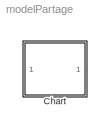
MODEL modelPartage
KIND model
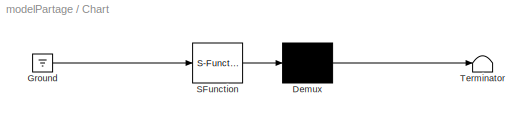
BLOCK [SubSystem] Chart
  FunctionWithSeparateData = off
  MaskDescription = Stateflow diagram
  MaskDisplay = plot(sf('Private','sfblk','xIcon'),sf('Private','sfblk','yIcon'));text(0.5,0,sf('Private', 'sfblk', 'tIcon'),'HorizontalAl','Center','VerticalAl','Bottom');
  MaskHideContents = off
  MaskIconFrame = off
  MaskIconOpaque = on
  MaskIconRotate = none
  MaskIconUnits = autoscale
  MaskPortRotate = default
  MaskSelfModifiable = on
  MaskType = Stateflow
  MinAlgLoopOccurrences = off
  Opaque = off
  PermitHierarchicalResolution = ExplicitOnly
  Ports = []
  PropExecContextOutsideSubsystem = off
  RTWSystemCode = Auto
  RequestExecContextInheritance = off
  SID = 3
  TreatAsAtomicUnit = on
BLOCK [Demux] Chart/ Demux 
  Outputs = 1
  Ports = [1, 1]
  SID = 14
BLOCK [Ground] Chart/ Ground 
  SID = 15
BLOCK [S-Function] Chart/ SFunction 
  EnableBusSupport = off
  FunctionName = sf_sfun
  PortCounts = [1 1]
  Ports = [1, 1]
  SID = 13
  Tag = Stateflow S-Function modelPartage 1
BLOCK [Terminator] Chart/ Terminator 
  SID = 16
LINE Chart/ Demux :1 -> Chart/ Terminator :1
LINE Chart/ Ground :1 -> Chart/ SFunction :1
LINE Chart/ SFunction :1 -> Chart/ Demux :1
CHART Chart states=61 transitions=33
  STATE_LABEL 'Debut Situation'
  STATE_LABEL 'franchissement VAG'
  STATE_LABEL '?'
  STATE_LABEL 'gestion obstacle'
  STATE_LABEL 'cas témoin (sans SV)'
  STATE_LABEL 'Approche\\nVirage'
  STATE_LABEL 'Entree\\nVirage'
  STATE_LABEL 'Debut Gestion\\nCourbe'
  STATE_LABEL 'Fin Gestion\\nCourbe'
  STATE_LABEL 'Sortie\\nVirage'
  STATE_LABEL '?'
  STATE_LABEL 'Manoeuvres Tactiques\\nAttendues'
  STATE_LABEL 'Actions Anormales'
  STATE_LABEL 'Manoeuvres Tactiques Anormales'
  STATE_LABEL 'Actions Attendues'
  STATE_LABEL 'Approche\\nObstacle'
  STATE_LABEL 'Depassement'
  STATE_LABEL 'Evitement'
  STATE_LABEL 'Debut Dep'
  STATE_LABEL 'Fin Dep'
  STATE_LABEL 'Fin Evit'
  STATE_LABEL 'Debut Evit'
  STATE_LABEL 'Fin Situation'
  STATE_LABEL 'SORTIE DE VOIE (LEGITIMITE - CRITICITE)'
  STATE_LABEL 'MODEL ACTIVITE SITUEE'
  STATE_LABEL 'JUGEMENT ADEQUATION'
  STATE_LABEL 'Legitime'
  STATE_LABEL 'Illegitime'
  STATE_LABEL 'Potentielle'
  STATE_LABEL 'Criticite Faible'
  STATE_LABEL 'Criticite Moyenne'
  STATE_LABEL 'Criticite Forte'
  STATE_LABEL 'LEGITIMITE'
  STATE_LABEL 'CRITICITE'
  STATE_LABEL 'SV_Possible'
  STATE_LABEL 'SV_Imminente'
  STATE_LABEL 'SV_Probable'
  STATE_LABEL 'PROBABILITE OCCURENCE'
  STATE_LABEL 'DIAGNOSTIC SORTIE DE VOIE'
  STATE_LABEL 'NON SORTIE DE VOIE'
